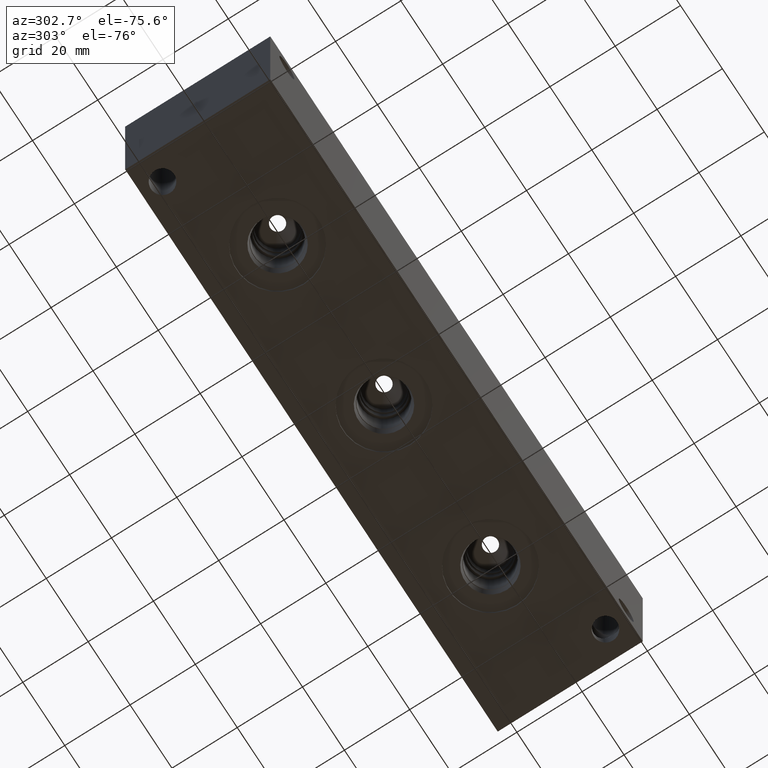
[diagram: clean part render]
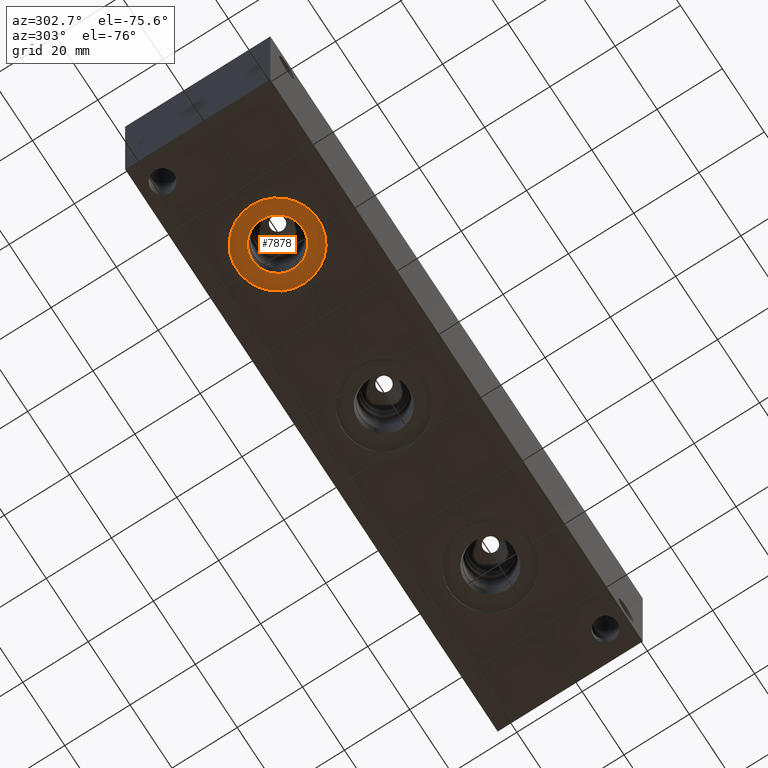
[diagram: same view with one face highlighted and labeled with its STEP entity id]
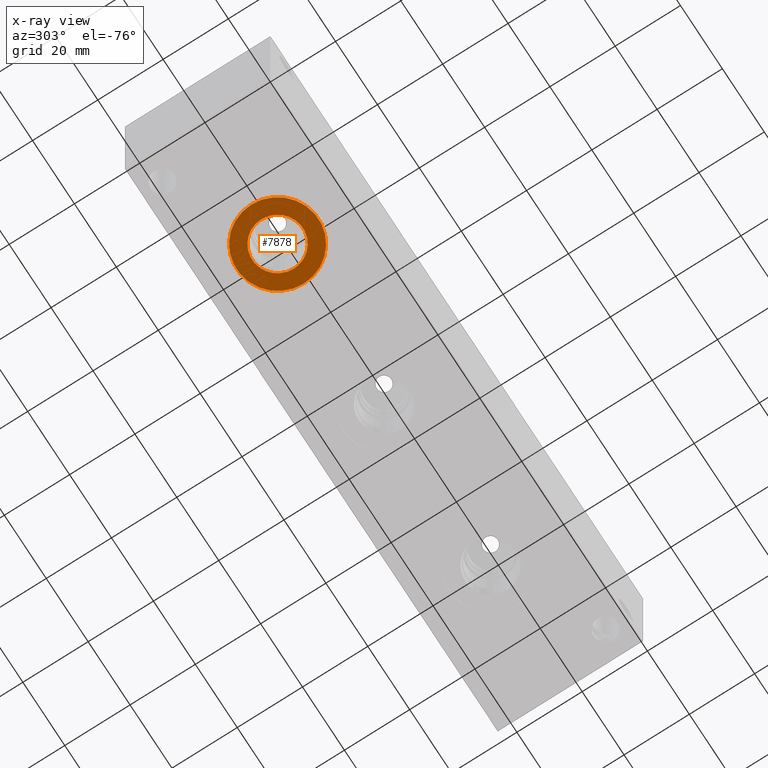
[diagram: x-ray of the same camera — body ghosted, the highlighted face saturated]
A machine part, auxiliary view. The second image highlights one B-rep face of the part: STEP entity #7878.
The next image is the same camera in x-ray: the body ghosted, the highlighted face saturated — about 0% of this face is hidden behind the body in this view.
In plain terms, the highlighted planar face has unit normal (0, 0, 1).
Its self-contained STEP definition (entity closure, byte-faithful):
#154=CIRCLE('',#8252,12.5095);
#155=CIRCLE('',#8253,12.5095);
#156=CIRCLE('',#8255,7.7978);
#157=CIRCLE('',#8256,7.7978);
#251=FACE_BOUND('',#1293,.T.);
#474=PLANE('',#8254);
#849=FACE_OUTER_BOUND('',#1292,.T.);
#1292=EDGE_LOOP('',(#6853,#6854));
#1293=EDGE_LOOP('',(#6855,#6856));
#3707=VERTEX_POINT('',#13551);
#3708=VERTEX_POINT('',#13553);
#3709=VERTEX_POINT('',#13557);
#3710=VERTEX_POINT('',#13558);
#4775=EDGE_CURVE('',#3707,#3708,#154,.T.);
#4776=EDGE_CURVE('',#3708,#3707,#155,.T.);
#4777=EDGE_CURVE('',#3709,#3710,#156,.T.);
#4778=EDGE_CURVE('',#3710,#3709,#157,.T.);
#6853=ORIENTED_EDGE('',*,*,#4776,.F.);
#6854=ORIENTED_EDGE('',*,*,#4775,.F.);
#6855=ORIENTED_EDGE('',*,*,#4777,.T.);
#6856=ORIENTED_EDGE('',*,*,#4778,.T.);
#7878=ADVANCED_FACE('',(#849,#251),#474,.F.);
#8252=AXIS2_PLACEMENT_3D('',#13554,#9671,#9672);
#8253=AXIS2_PLACEMENT_3D('',#13555,#9673,#9674);
#8254=AXIS2_PLACEMENT_3D('',#13556,#9675,#9676);
#8255=AXIS2_PLACEMENT_3D('',#13559,#9677,#9678);
#8256=AXIS2_PLACEMENT_3D('',#13560,#9679,#9680);
#9671=DIRECTION('center_axis',(0.,0.,1.));
#9672=DIRECTION('ref_axis',(1.,0.,0.));
#9673=DIRECTION('center_axis',(0.,0.,1.));
#9674=DIRECTION('ref_axis',(1.,0.,0.));
#9675=DIRECTION('center_axis',(0.,0.,1.));
#9676=DIRECTION('ref_axis',(1.,0.,0.));
#9677=DIRECTION('center_axis',(0.,0.,1.));
#9678=DIRECTION('ref_axis',(1.,0.,0.));
#9679=DIRECTION('center_axis',(0.,0.,1.));
#9680=DIRECTION('ref_axis',(1.,0.,0.));
#13551=CARTESIAN_POINT('',(25.5905,22.225,0.7874));
#13553=CARTESIAN_POINT('',(50.6095,22.225,0.7874));
#13554=CARTESIAN_POINT('Origin',(38.1,22.225,0.7874));
#13555=CARTESIAN_POINT('Origin',(38.1,22.225,0.7874));
#13556=CARTESIAN_POINT('Origin',(45.8978,22.225,0.7874));
#13557=CARTESIAN_POINT('',(45.8978,22.225,0.7874));
#13558=CARTESIAN_POINT('',(30.3022,22.225,0.787399999999999));
#13559=CARTESIAN_POINT('Origin',(38.1,22.225,0.7874));
#13560=CARTESIAN_POINT('Origin',(38.1,22.225,0.7874));